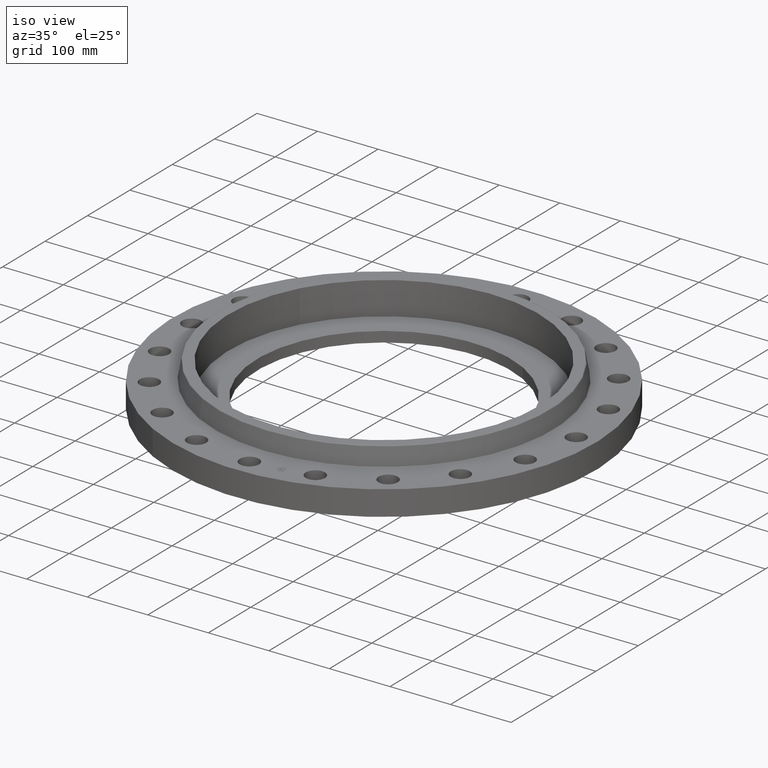
[diagram: clean part render]
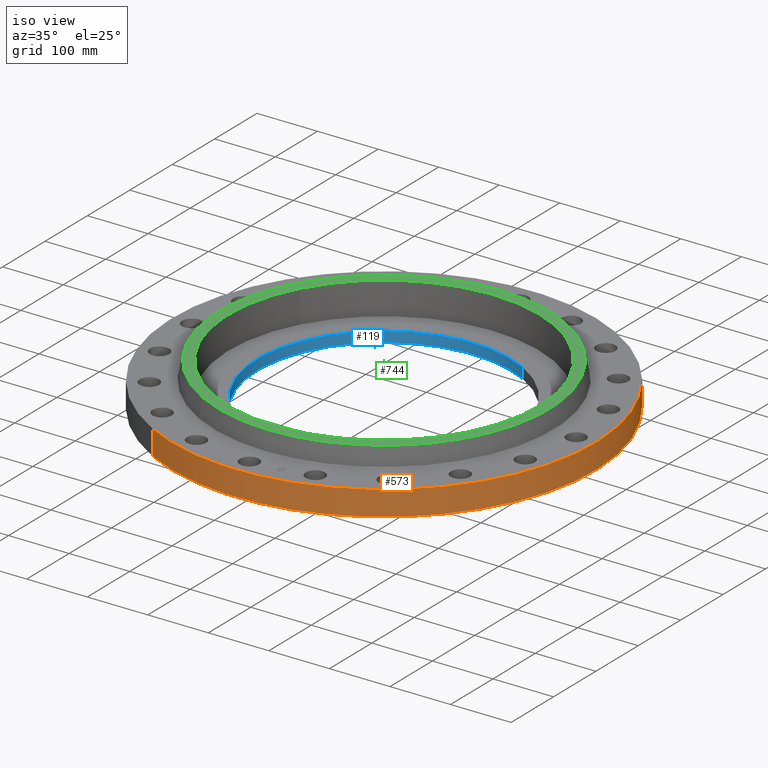
[diagram: same view with three faces highlighted in distinct colors, each labeled with its STEP entity id]
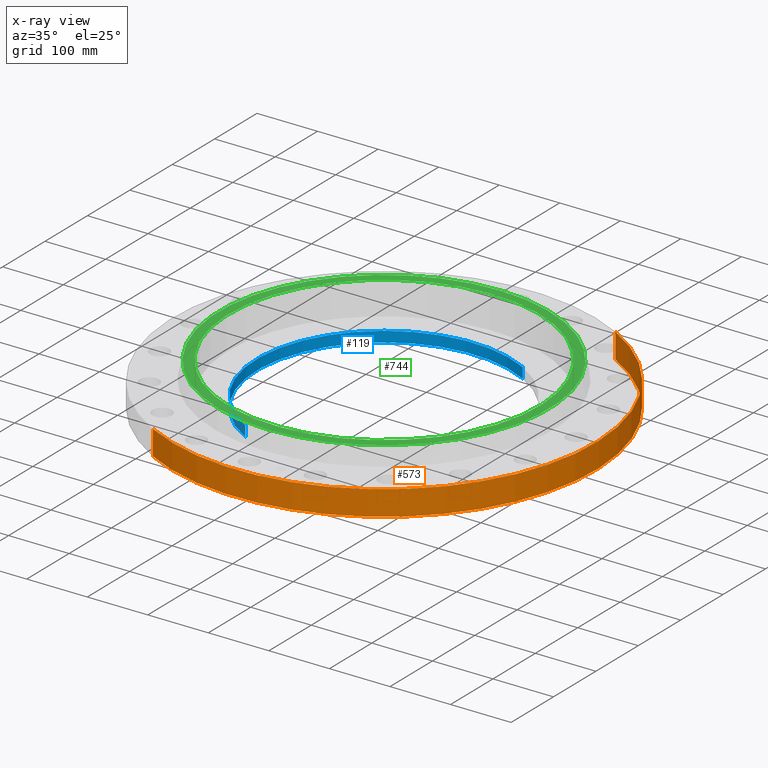
[diagram: x-ray of the same camera — body ghosted, the three highlighted faces saturated]
A machine part, iso view with three faces highlighted in distinct colors.
The next image is the same camera in x-ray (body ghosted, the three faces saturated) — at least one of them is partly hidden behind the body in this view.
Their STEP definitions:

[orange] entity #573 — the highlighted cylindrical surface (partial cylindrical patch) has radius 349.25 mm, axis along (0, 0, -1).
#159=AXIS2_PLACEMENT_3D('Circle Axis2P3D',#157,#158,$) ;
#534=AXIS2_PLACEMENT_3D('Cylinder Axis2P3D',#531,#532,#533) ;
#564=AXIS2_PLACEMENT_3D('Circle Axis2P3D',#562,#563,$) ;
#152=CARTESIAN_POINT('Vertex',(-6.59210115583,-12.066760226,1.67844740731E-015)) ;
#154=CARTESIAN_POINT('Vertex',(6.59210115583,12.066760226,1.67844740731E-015)) ;
#157=CARTESIAN_POINT('Axis2P3D Location',(0.,0.,0.)) ;
#531=CARTESIAN_POINT('Axis2P3D Location',(0.,0.,1.40500000001)) ;
#536=CARTESIAN_POINT('Line Origine',(-6.59210115583,-12.066760226,0.810000000003)) ;
#540=CARTESIAN_POINT('Vertex',(-6.59210115583,-12.066760226,1.62000000001)) ;
#547=CARTESIAN_POINT('Vertex',(6.59210115583,12.066760226,1.62000000001)) ;
#550=CARTESIAN_POINT('Line Origine',(6.59210115583,12.066760226,0.810000000003)) ;
#562=CARTESIAN_POINT('Axis2P3D Location',(0.,0.,1.62000000001)) ;
#158=DIRECTION('Axis2P3D Direction',(0.,0.,-0.0393700787402)) ;
#532=DIRECTION('Axis2P3D Direction',(0.,0.,-0.0393700787402)) ;
#533=DIRECTION('Axis2P3D XDirection',(0.0188750212049,0.0345504945626,0.)) ;
#537=DIRECTION('Vector Direction',(0.,0.,-0.0393700787402)) ;
#551=DIRECTION('Vector Direction',(0.,0.,-0.0393700787402)) ;
#563=DIRECTION('Axis2P3D Direction',(0.,0.,-0.0393700787402)) ;
#538=VECTOR('Line Direction',#537,0.0393700787402) ;
#552=VECTOR('Line Direction',#551,0.0393700787402) ;
#568=ORIENTED_EDGE('',*,*,#161,.F.) ;
#569=ORIENTED_EDGE('',*,*,#554,.T.) ;
#570=ORIENTED_EDGE('',*,*,#566,.T.) ;
#571=ORIENTED_EDGE('',*,*,#542,.F.) ;
#573=ADVANCED_FACE('PartBody',(#572),#535,.T.) ;
#160=CIRCLE('generated circle',#159,13.7500000001) ;
#565=CIRCLE('generated circle',#564,13.7500000001) ;
#535=CYLINDRICAL_SURFACE('generated cylinder',#534,13.7500000001) ;
#161=EDGE_CURVE('',#155,#153,#160,.T.) ;
#542=EDGE_CURVE('',#153,#541,#539,.F.) ;
#554=EDGE_CURVE('',#155,#548,#553,.F.) ;
#566=EDGE_CURVE('',#548,#541,#565,.T.) ;
#567=EDGE_LOOP('',(#568,#569,#570,#571)) ;
#572=FACE_OUTER_BOUND('',#567,.T.) ;
#539=LINE('Line',#536,#538) ;
#553=LINE('Line',#550,#552) ;
#153=VERTEX_POINT('',#152) ;
#155=VERTEX_POINT('',#154) ;
#541=VERTEX_POINT('',#540) ;
#548=VERTEX_POINT('',#547) ;

[blue] entity #119 — the highlighted cylindrical surface (partial cylindrical patch) has radius 209.55 mm, axis along (0, 0, -1).
#60=AXIS2_PLACEMENT_3D('Circle Axis2P3D',#58,#59,$) ;
#80=AXIS2_PLACEMENT_3D('Cylinder Axis2P3D',#77,#78,#79) ;
#110=AXIS2_PLACEMENT_3D('Circle Axis2P3D',#108,#109,$) ;
#58=CARTESIAN_POINT('Axis2P3D Location',(-2.23792987641E-015,-6.2941777774E-016,0.680000000003)) ;
#62=CARTESIAN_POINT('Vertex',(-3.9552606935,-7.24005613562,0.680000000003)) ;
#64=CARTESIAN_POINT('Vertex',(3.9552606935,7.24005613562,0.680000000003)) ;
#77=CARTESIAN_POINT('Axis2P3D Location',(0.,0.,1.40500000001)) ;
#82=CARTESIAN_POINT('Line Origine',(3.9552606935,7.24005613562,0.340000000001)) ;
#86=CARTESIAN_POINT('Vertex',(3.9552606935,7.24005613562,-7.32922034524E-014)) ;
#93=CARTESIAN_POINT('Vertex',(-3.9552606935,-7.24005613562,-7.32922034524E-014)) ;
#96=CARTESIAN_POINT('Line Origine',(-3.9552606935,-7.24005613562,0.340000000001)) ;
#108=CARTESIAN_POINT('Axis2P3D Location',(0.,0.,-7.32922034524E-014)) ;
#59=DIRECTION('Axis2P3D Direction',(0.,0.,-0.0393700787402)) ;
#78=DIRECTION('Axis2P3D Direction',(0.,0.,-0.0393700787402)) ;
#79=DIRECTION('Axis2P3D XDirection',(-0.0188750212049,-0.0345504945626,0.)) ;
#83=DIRECTION('Vector Direction',(0.,0.,-0.0393700787402)) ;
#97=DIRECTION('Vector Direction',(0.,0.,-0.0393700787402)) ;
#109=DIRECTION('Axis2P3D Direction',(0.,0.,-0.0393700787402)) ;
#84=VECTOR('Line Direction',#83,0.0393700787402) ;
#98=VECTOR('Line Direction',#97,0.0393700787402) ;
#114=ORIENTED_EDGE('',*,*,#100,.T.) ;
#115=ORIENTED_EDGE('',*,*,#112,.T.) ;
#116=ORIENTED_EDGE('',*,*,#88,.F.) ;
#117=ORIENTED_EDGE('',*,*,#66,.F.) ;
#119=ADVANCED_FACE('PartBody',(#118),#81,.F.) ;
#61=CIRCLE('generated circle',#60,8.25000000003) ;
#111=CIRCLE('generated circle',#110,8.25000000003) ;
#81=CYLINDRICAL_SURFACE('generated cylinder',#80,8.25000000003) ;
#66=EDGE_CURVE('',#63,#65,#61,.T.) ;
#88=EDGE_CURVE('',#65,#87,#85,.T.) ;
#100=EDGE_CURVE('',#63,#94,#99,.T.) ;
#112=EDGE_CURVE('',#94,#87,#111,.T.) ;
#113=EDGE_LOOP('',(#114,#115,#116,#117)) ;
#118=FACE_OUTER_BOUND('',#113,.T.) ;
#85=LINE('Line',#82,#84) ;
#99=LINE('Line',#96,#98) ;
#63=VERTEX_POINT('',#62) ;
#65=VERTEX_POINT('',#64) ;
#87=VERTEX_POINT('',#86) ;
#94=VERTEX_POINT('',#93) ;

[green] entity #744 — the highlighted planar face has unit normal (0, 0, -1).
#688=AXIS2_PLACEMENT_3D('Circle Axis2P3D',#686,#687,$) ;
#707=AXIS2_PLACEMENT_3D('Circle Axis2P3D',#705,#706,$) ;
#720=AXIS2_PLACEMENT_3D('Plane Axis2P3D',#717,#718,#719) ;
#728=AXIS2_PLACEMENT_3D('Circle Axis2P3D',#726,#727,$) ;
#737=AXIS2_PLACEMENT_3D('Circle Axis2P3D',#735,#736,$) ;
#683=CARTESIAN_POINT('Vertex',(5.14894634445,9.42508306327,2.81000000001)) ;
#686=CARTESIAN_POINT('Axis2P3D Location',(0.,0.,2.81000000001)) ;
#690=CARTESIAN_POINT('Vertex',(-5.14894634445,-9.42508306327,2.81000000001)) ;
#705=CARTESIAN_POINT('Axis2P3D Location',(0.,0.,2.81000000001)) ;
#717=CARTESIAN_POINT('Axis2P3D Location',(0.,10.7398249151,2.81000000001)) ;
#726=CARTESIAN_POINT('Axis2P3D Location',(-5.59482469102E-016,2.23792987641E-015,2.81000000001)) ;
#730=CARTESIAN_POINT('Vertex',(-8.86358387513,4.84219793992,2.81000000001)) ;
#732=CARTESIAN_POINT('Vertex',(8.86358387513,-4.84219793992,2.81000000001)) ;
#735=CARTESIAN_POINT('Axis2P3D Location',(-2.79741234551E-016,0.,2.81000000001)) ;
#687=DIRECTION('Axis2P3D Direction',(0.,0.,-0.0393700787402)) ;
#706=DIRECTION('Axis2P3D Direction',(0.,0.,-0.0393700787402)) ;
#718=DIRECTION('Axis2P3D Direction',(0.,0.,-0.0393700787402)) ;
#719=DIRECTION('Axis2P3D XDirection',(0.0393700787402,0.,0.)) ;
#727=DIRECTION('Axis2P3D Direction',(0.,0.,-0.0393700787402)) ;
#736=DIRECTION('Axis2P3D Direction',(0.,0.,-0.0393700787402)) ;
#723=ORIENTED_EDGE('',*,*,#692,.F.) ;
#724=ORIENTED_EDGE('',*,*,#709,.F.) ;
#741=ORIENTED_EDGE('',*,*,#734,.T.) ;
#742=ORIENTED_EDGE('',*,*,#739,.T.) ;
#743=FACE_BOUND('',#740,.T.) ;
#744=ADVANCED_FACE('PartBody',(#725,#743),#721,.F.) ;
#689=CIRCLE('generated circle',#688,10.7398249151) ;
#708=CIRCLE('generated circle',#707,10.7398249151) ;
#729=CIRCLE('generated circle',#728,10.1) ;
#738=CIRCLE('generated circle',#737,10.1) ;
#692=EDGE_CURVE('',#684,#691,#689,.T.) ;
#709=EDGE_CURVE('',#691,#684,#708,.T.) ;
#734=EDGE_CURVE('',#731,#733,#729,.T.) ;
#739=EDGE_CURVE('',#733,#731,#738,.T.) ;
#722=EDGE_LOOP('',(#723,#724)) ;
#740=EDGE_LOOP('',(#741,#742)) ;
#725=FACE_OUTER_BOUND('',#722,.T.) ;
#721=PLANE('',#720) ;
#684=VERTEX_POINT('',#683) ;
#691=VERTEX_POINT('',#690) ;
#731=VERTEX_POINT('',#730) ;
#733=VERTEX_POINT('',#732) ;